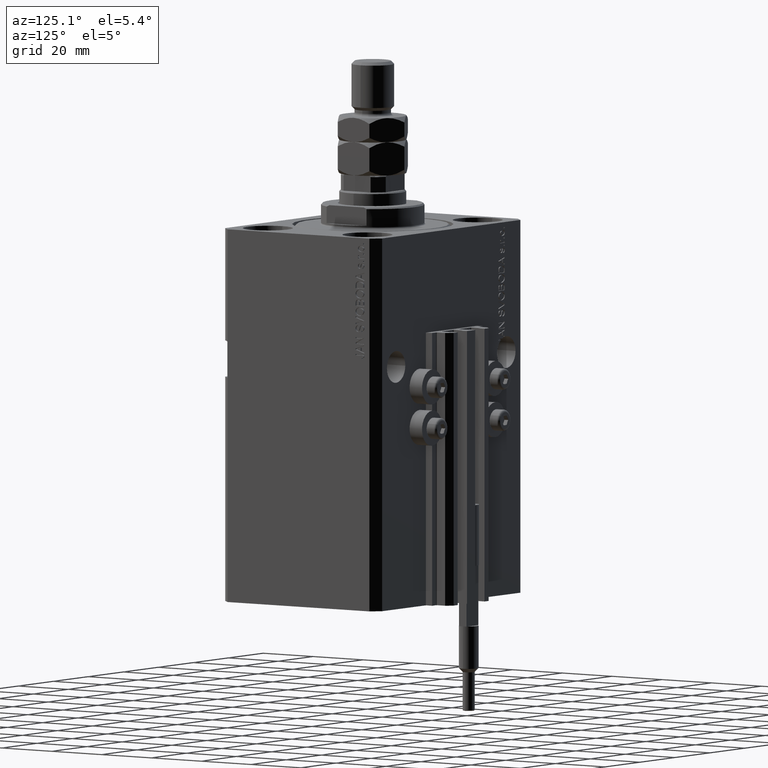
[diagram: clean part render]
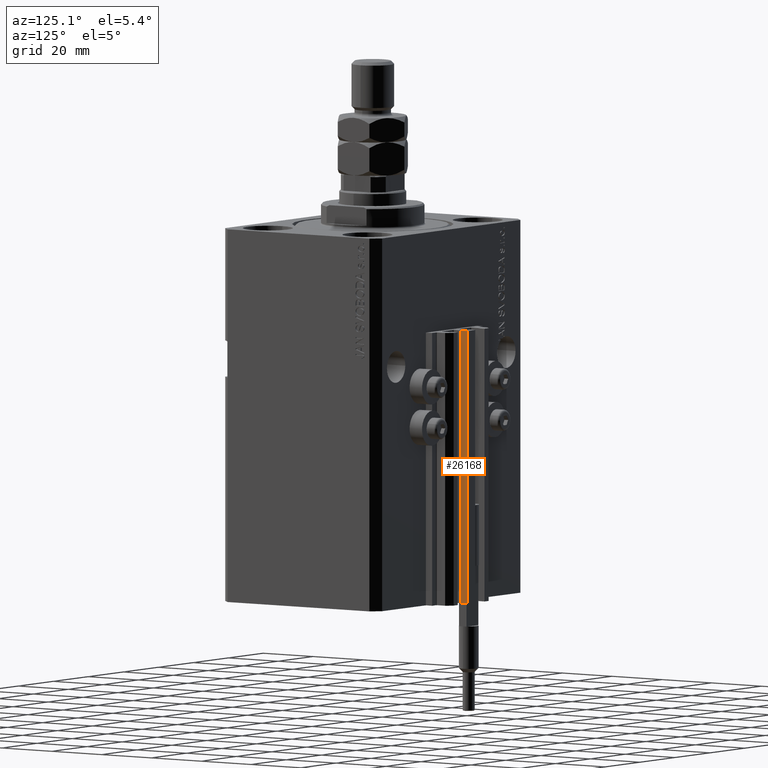
[diagram: same view with one face highlighted and labeled with its STEP entity id]
A machine part, auxiliary view. The second image highlights one B-rep face of the part: STEP entity #26168.
In plain terms, the highlighted planar face has unit normal (1, 0, 0).
Its self-contained STEP definition (entity closure, byte-faithful):
#1028 = ORIENTED_EDGE ( 'NONE', *, *, #34115, .F. ) ;
#5929 = VERTEX_POINT ( 'NONE', #34255 ) ;
#7842 = LINE ( 'NONE', #38677, #15228 ) ;
#7891 = DIRECTION ( 'NONE',  ( 0.000000000000000000, 1.000000000000000000, 0.000000000000000000 ) ) ;
#8899 = DIRECTION ( 'NONE',  ( 0.000000000000000000, 1.000000000000000000, 0.000000000000000000 ) ) ;
#9645 = ORIENTED_EDGE ( 'NONE', *, *, #41157, .F. ) ;
#9882 = EDGE_CURVE ( 'NONE', #5929, #31885, #41761, .T. ) ;
#10574 = ORIENTED_EDGE ( 'NONE', *, *, #9882, .T. ) ;
#14704 = DIRECTION ( 'NONE',  ( 0.000000000000000000, 0.000000000000000000, -1.000000000000000000 ) ) ;
#15228 = VECTOR ( 'NONE', #19477, 1000.000000000000000 ) ;
#16543 = AXIS2_PLACEMENT_3D ( 'NONE', #18746, #34154, #14704 ) ;
#18746 = CARTESIAN_POINT ( 'NONE',  ( 2.349999999999999645, 37.10000000000000853, -123.0000000000000000 ) ) ;
#19477 = DIRECTION ( 'NONE',  ( 0.000000000000000000, 0.000000000000000000, 1.000000000000000000 ) ) ;
#19861 = EDGE_LOOP ( 'NONE', ( #9645, #1028, #10574, #37315 ) ) ;
#20917 = VECTOR ( 'NONE', #7891, 1000.000000000000000 ) ;
#23743 = CARTESIAN_POINT ( 'NONE',  ( 2.349999999999999645, 37.10000000000000853, -33.00000000000000000 ) ) ;
#23832 = LINE ( 'NONE', #24322, #39546 ) ;
#24322 = CARTESIAN_POINT ( 'NONE',  ( 2.349999999999999645, 37.10000000000000853, -33.00000000000000000 ) ) ;
#26168 = ADVANCED_FACE ( 'NONE', ( #45286 ), #37691, .T. ) ;
#28335 = VERTEX_POINT ( 'NONE', #23743 ) ;
#28865 = CARTESIAN_POINT ( 'NONE',  ( 2.349999999999999645, 39.50000000000000711, -33.00000000000000000 ) ) ;
#31885 = VERTEX_POINT ( 'NONE', #40966 ) ;
#32840 = VECTOR ( 'NONE', #37396, 1000.000000000000000 ) ;
#34115 = EDGE_CURVE ( 'NONE', #5929, #28335, #45735, .T. ) ;
#34154 = DIRECTION ( 'NONE',  ( 1.000000000000000000, 0.000000000000000000, 0.000000000000000000 ) ) ;
#34255 = CARTESIAN_POINT ( 'NONE',  ( 2.349999999999999645, 37.10000000000000853, -123.0000000000000000 ) ) ;
#37315 = ORIENTED_EDGE ( 'NONE', *, *, #41572, .T. ) ;
#37396 = DIRECTION ( 'NONE',  ( 0.000000000000000000, 0.000000000000000000, 1.000000000000000000 ) ) ;
#37691 = PLANE ( 'NONE',  #16543 ) ;
#38677 = CARTESIAN_POINT ( 'NONE',  ( 2.349999999999999645, 39.50000000000000711, -123.0000000000000000 ) ) ;
#38727 = CARTESIAN_POINT ( 'NONE',  ( 2.349999999999999645, 37.10000000000000853, -123.0000000000000000 ) ) ;
#39546 = VECTOR ( 'NONE', #8899, 1000.000000000000000 ) ;
#40966 = CARTESIAN_POINT ( 'NONE',  ( 2.349999999999999645, 39.50000000000000711, -123.0000000000000000 ) ) ;
#41157 = EDGE_CURVE ( 'NONE', #28335, #42455, #23832, .T. ) ;
#41572 = EDGE_CURVE ( 'NONE', #31885, #42455, #7842, .T. ) ;
#41697 = CARTESIAN_POINT ( 'NONE',  ( 2.349999999999999645, 37.10000000000000853, -123.0000000000000000 ) ) ;
#41761 = LINE ( 'NONE', #38727, #20917 ) ;
#42455 = VERTEX_POINT ( 'NONE', #28865 ) ;
#45286 = FACE_OUTER_BOUND ( 'NONE', #19861, .T. ) ;
#45735 = LINE ( 'NONE', #41697, #32840 ) ;